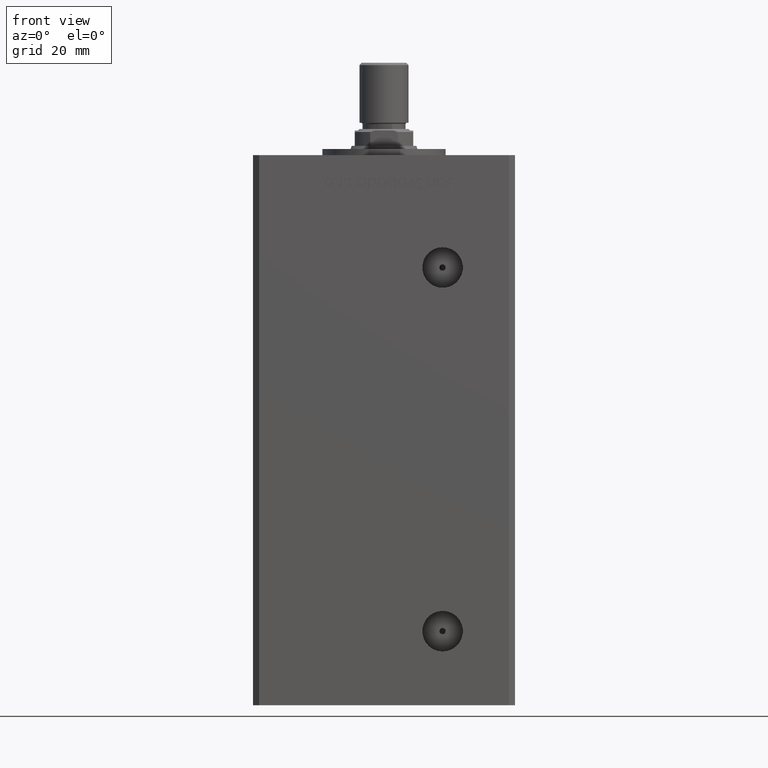
[diagram: clean part render]
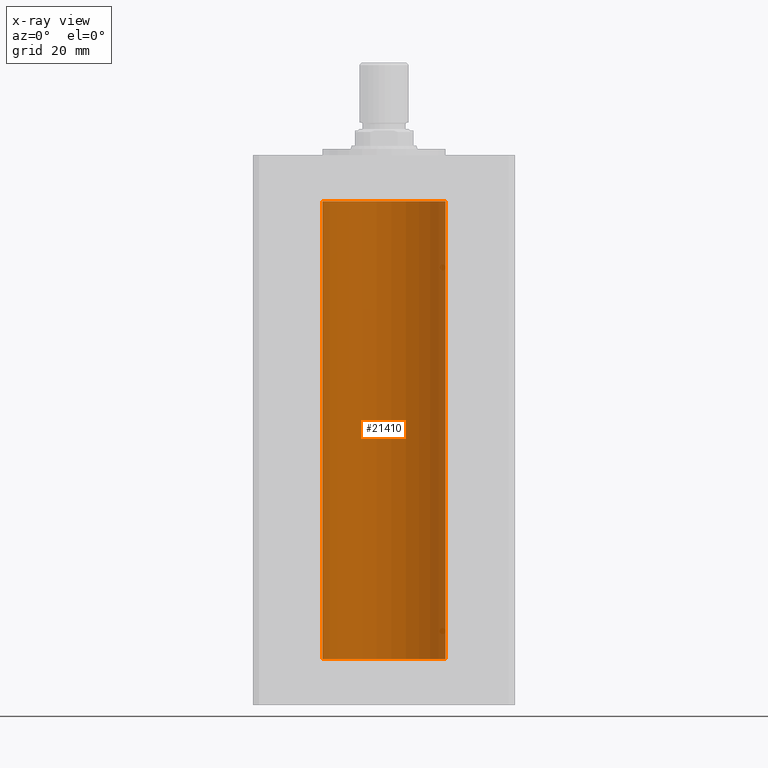
[diagram: x-ray — body ghosted, one internal face saturated and labeled with its STEP entity id]
A machine part, front view, then the same camera in x-ray: the body is ghosted and one INTERNAL B-rep face — a face not visible from any outside direction — is saturated and labeled: STEP entity #21410.
In plain terms, the highlighted cylindrical surface (partial cylindrical patch) has radius 20 mm, axis along (-0, -0, -1).
Its self-contained STEP definition (entity closure, byte-faithful):
#416 = ORIENTED_EDGE ( 'NONE', *, *, #31000, .T. ) ;
#3036 = VECTOR ( 'NONE', #27436, 1000.000000000000000 ) ;
#4422 = VECTOR ( 'NONE', #22962, 1000.000000000000000 ) ;
#4464 = CARTESIAN_POINT ( 'NONE',  ( 20.00000000000000000, 2.449293598294706513E-15, 0.000000000000000000 ) ) ;
#5162 = DIRECTION ( 'NONE',  ( -0.000000000000000000, 0.000000000000000000, 1.000000000000000000 ) ) ;
#6551 = LINE ( 'NONE', #26401, #4422 ) ;
#6990 = ORIENTED_EDGE ( 'NONE', *, *, #23277, .F. ) ;
#8085 = CARTESIAN_POINT ( 'NONE',  ( 0.000000000000000000, 0.000000000000000000, 0.000000000000000000 ) ) ;
#10777 = CARTESIAN_POINT ( 'NONE',  ( 20.00000000000000000, 2.449293598294706513E-15, 148.5000000000000000 ) ) ;
#10992 = VERTEX_POINT ( 'NONE', #48450 ) ;
#13367 = CYLINDRICAL_SURFACE ( 'NONE', #28413, 20.00000000000000000 ) ;
#15626 = EDGE_CURVE ( 'NONE', #38232, #10992, #39276, .T. ) ;
#17602 = FACE_OUTER_BOUND ( 'NONE', #34294, .T. ) ;
#19712 = ORIENTED_EDGE ( 'NONE', *, *, #21120, .T. ) ;
#21120 = EDGE_CURVE ( 'NONE', #22959, #10992, #35138, .T. ) ;
#21410 = ADVANCED_FACE ( 'NONE', ( #17602 ), #13367, .F. ) ;
#22959 = VERTEX_POINT ( 'NONE', #27254 ) ;
#22962 = DIRECTION ( 'NONE',  ( -0.000000000000000000, -0.000000000000000000, -1.000000000000000000 ) ) ;
#23277 = EDGE_CURVE ( 'NONE', #29841, #38232, #6551, .T. ) ;
#24241 = DIRECTION ( 'NONE',  ( 1.000000000000000000, 0.000000000000000000, 0.000000000000000000 ) ) ;
#26401 = CARTESIAN_POINT ( 'NONE',  ( 20.00000000000000000, 2.449293598294706513E-15, 148.5000000000000000 ) ) ;
#27254 = CARTESIAN_POINT ( 'NONE',  ( -20.00000000000000000, 0.000000000000000000, 148.5000000000000000 ) ) ;
#27436 = DIRECTION ( 'NONE',  ( -0.000000000000000000, -0.000000000000000000, -1.000000000000000000 ) ) ;
#28413 = AXIS2_PLACEMENT_3D ( 'NONE', #29517, #45692, #51509 ) ;
#29517 = CARTESIAN_POINT ( 'NONE',  ( 0.000000000000000000, 0.000000000000000000, 148.5000000000000000 ) ) ;
#29841 = VERTEX_POINT ( 'NONE', #10777 ) ;
#31000 = EDGE_CURVE ( 'NONE', #29841, #22959, #49519, .T. ) ;
#31662 = DIRECTION ( 'NONE',  ( -0.000000000000000000, 0.000000000000000000, 1.000000000000000000 ) ) ;
#32979 = DIRECTION ( 'NONE',  ( 1.000000000000000000, 0.000000000000000000, 0.000000000000000000 ) ) ;
#34294 = EDGE_LOOP ( 'NONE', ( #6990, #416, #19712, #45979 ) ) ;
#35035 = AXIS2_PLACEMENT_3D ( 'NONE', #8085, #31662, #24241 ) ;
#35138 = LINE ( 'NONE', #43867, #3036 ) ;
#38232 = VERTEX_POINT ( 'NONE', #4464 ) ;
#39276 = CIRCLE ( 'NONE', #35035, 20.00000000000000000 ) ;
#41042 = AXIS2_PLACEMENT_3D ( 'NONE', #41462, #5162, #32979 ) ;
#41462 = CARTESIAN_POINT ( 'NONE',  ( 0.000000000000000000, 0.000000000000000000, 148.5000000000000000 ) ) ;
#43867 = CARTESIAN_POINT ( 'NONE',  ( -20.00000000000000000, 0.000000000000000000, 148.5000000000000000 ) ) ;
#45692 = DIRECTION ( 'NONE',  ( -0.000000000000000000, -0.000000000000000000, -1.000000000000000000 ) ) ;
#45979 = ORIENTED_EDGE ( 'NONE', *, *, #15626, .F. ) ;
#48450 = CARTESIAN_POINT ( 'NONE',  ( -20.00000000000000000, 0.000000000000000000, 0.000000000000000000 ) ) ;
#49519 = CIRCLE ( 'NONE', #41042, 20.00000000000000000 ) ;
#51509 = DIRECTION ( 'NONE',  ( -1.000000000000000000, 0.000000000000000000, 0.000000000000000000 ) ) ;